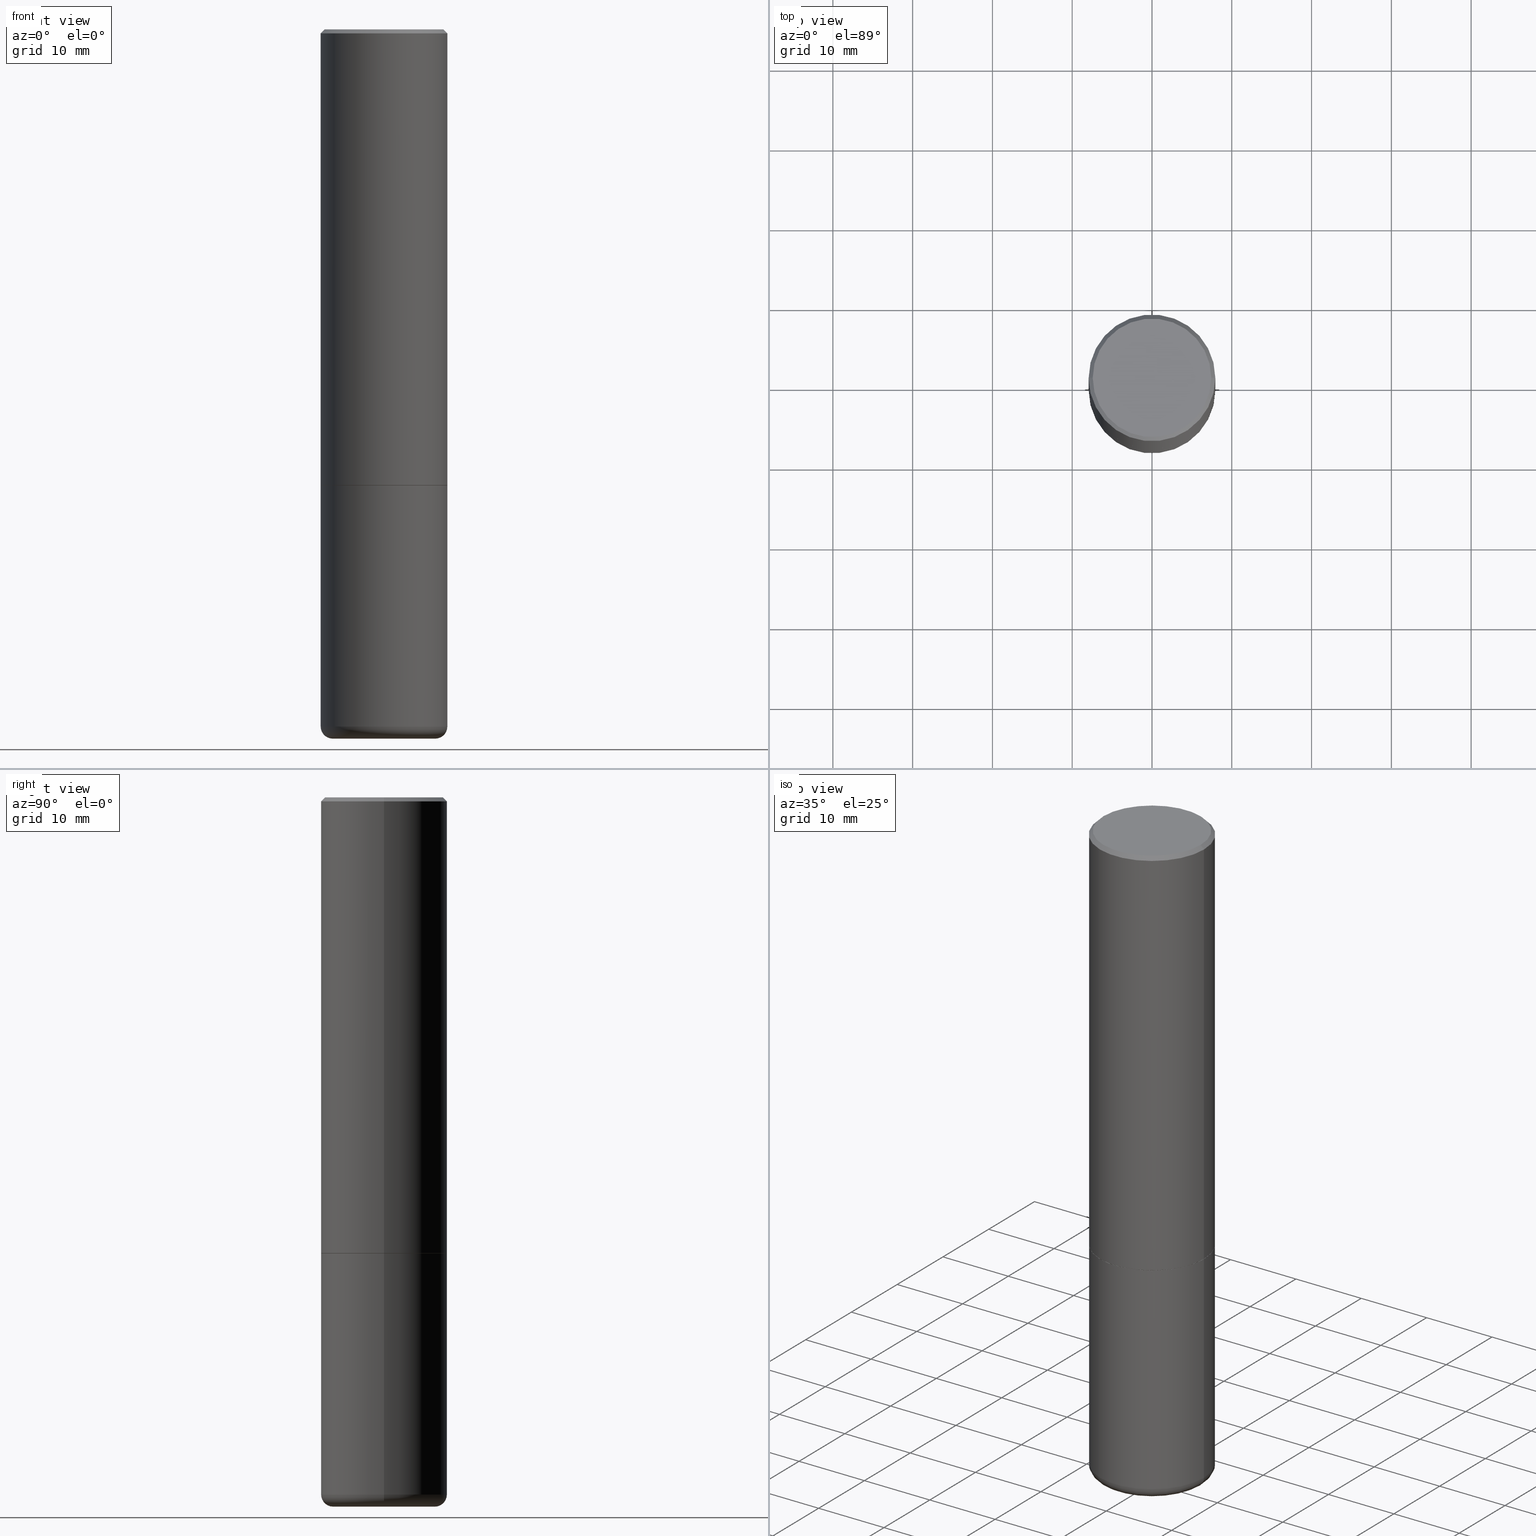
[diagram: canonical four-view strip — front | top / right | iso, engineering-drawing reading convention]
A machine part, canonical four-view strip (front | top / right | iso — engineering-drawing reading convention). The complete STEP part file that produces these views, byte-faithful:
ISO-10303-21;
HEADER;
FILE_DESCRIPTION (( 'STEP AP203' ),
    '1' );
FILE_NAME ('38631.STEP',
    '2024-03-03T09:29:24',
    ( '' ),
    ( '' ),
    'SwSTEP 2.0',
    'SolidWorks 2023',
    '' );
FILE_SCHEMA (( 'CONFIG_CONTROL_DESIGN' ));
ENDSEC;

DATA;
#1 = DIRECTION ( 'NONE',  ( -1.000000000000000000, 6.982962677686265922E-15, -4.876176775795935793E-29 ) ) ;
#2 = EDGE_LOOP ( 'NONE', ( #149, #300, #309, #335 ) ) ;
#3 = PERSON_AND_ORGANIZATION_ROLE ( 'creator' ) ;
#4 = VECTOR ( 'NONE', #322, 39.37007874015748143 ) ;
#5 = EDGE_CURVE ( 'NONE', #384, #326, #220, .T. ) ;
#6 = PLANE ( 'NONE',  #310 ) ;
#7 = DIRECTION ( 'NONE',  ( 1.000000000000000000, -6.982962677686266711E-15, 0.000000000000000000 ) ) ;
#8 = COORDINATED_UNIVERSAL_TIME_OFFSET ( 5, 0, .BEHIND. ) ;
#9 = VECTOR ( 'NONE', #81, 39.37007874015748143 ) ;
#10 = CIRCLE ( 'NONE', #49, 0.2925000000000002043 ) ;
#11 = ORIENTED_EDGE ( 'NONE', *, *, #312, .F. ) ;
#12 = EDGE_CURVE ( 'NONE', #154, #228, #126, .T. ) ;
#13 = CARTESIAN_POINT ( 'NONE',  ( 8.412412693276869938E-29, -1.201069580562042103E-14, -3.439999999999999947 ) ) ;
#14 = PERSON ( 'UNSPECIFIED', 'UNSPECIFIED', 'UNSPECIFIED', ('UNSPECIFIED'), ('UNSPECIFIED'), ('UNSPECIFIED') ) ;
#15 = ADVANCED_FACE ( 'NONE', ( #34 ), #6, .F. ) ;
#16 = CC_DESIGN_DATE_AND_TIME_ASSIGNMENT ( #370, #40, ( #70 ) ) ;
#17 = AXIS2_PLACEMENT_3D ( 'NONE', #385, #110, #328 ) ;
#18 = ORIENTED_EDGE ( 'NONE', *, *, #104, .T. ) ;
#19 = AXIS2_PLACEMENT_3D ( 'NONE', #150, #286, #119 ) ;
#20 = ORIENTED_EDGE ( 'NONE', *, *, #120, .T. ) ;
#21 = DIRECTION ( 'NONE',  ( -2.445468806185136597E-29, 3.491481338843145583E-15, 1.000000000000000000 ) ) ;
#22 = CC_DESIGN_SECURITY_CLASSIFICATION ( #400, ( #182 ) ) ;
#23 = ADVANCED_FACE ( 'NONE', ( #359 ), #399, .T. ) ;
#24 = ORIENTED_EDGE ( 'NONE', *, *, #104, .F. ) ;
#25 = FACE_OUTER_BOUND ( 'NONE', #365, .T. ) ;
#26 = CARTESIAN_POINT ( 'NONE',  ( 5.499859345110371740E-29, -7.852341531058233864E-15, -2.248999999999999666 ) ) ;
#27 = ORIENTED_EDGE ( 'NONE', *, *, #299, .T. ) ;
#28 = DIRECTION ( 'NONE',  ( -2.445468806185136597E-29, 3.491481338843145583E-15, 1.000000000000000000 ) ) ;
#29 = DIRECTION ( 'NONE',  ( -1.000000000000000000, 6.982962677686265922E-15, -4.876176775795935793E-29 ) ) ;
#30 = DIRECTION ( 'NONE',  ( -1.000000000000000000, 6.982962677686265922E-15, -4.876176775795935793E-29 ) ) ;
#31 = DIRECTION ( 'NONE',  ( 1.000000000000000000, -6.982962677686266711E-15, 4.876176775795935232E-29 ) ) ;
#32 = CIRCLE ( 'NONE', #241, 0.3125000000000002220 ) ;
#33 = CARTESIAN_POINT ( 'NONE',  ( 0.3125000000000000555, -2.213735251080467306E-15, -0.02000000000000009756 ) ) ;
#34 = FACE_OUTER_BOUND ( 'NONE', #94, .T. ) ;
#35 = ADVANCED_BREP_SHAPE_REPRESENTATION ( '38631', ( #394, #246, #19 ), #344 ) ;
#36 = DIRECTION ( 'NONE',  ( 2.438088387897960049E-29, -3.491481338843145188E-15, -1.000000000000000000 ) ) ;
#37 = VERTEX_POINT ( 'NONE', #345 ) ;
#38 = PLANE ( 'NONE',  #324 ) ;
#39 = ORIENTED_EDGE ( 'NONE', *, *, #240, .T. ) ;
#40 = DATE_TIME_ROLE ( 'creation_date' ) ;
#41 = VERTEX_POINT ( 'NONE', #179 ) ;
#42 = CALENDAR_DATE ( 2024, 3, 3 ) ;
#43 = PERSON_AND_ORGANIZATION ( #14, #311 ) ;
#44 = DIRECTION ( 'NONE',  ( -0.7071067811865453523, 2.468850131082234184E-15, -0.7071067811865496822 ) ) ;
#45 = DIRECTION ( 'NONE',  ( -2.445468806185136597E-29, 3.491481338843145583E-15, 1.000000000000000000 ) ) ;
#46 = EDGE_CURVE ( 'NONE', #384, #217, #158, .T. ) ;
#47 = CARTESIAN_POINT ( 'NONE',  ( -0.3125000000000000555, 2.112346210000095443E-15, -0.02000000000000009756 ) ) ;
#48 = DIRECTION ( 'NONE',  ( -1.000000000000000000, 7.105427357600997914E-15, 0.000000000000000000 ) ) ;
#49 = AXIS2_PLACEMENT_3D ( 'NONE', #155, #28, #121 ) ;
#50 = DIRECTION ( 'NONE',  ( -2.445468806185136597E-29, 3.491481338843145583E-15, 1.000000000000000000 ) ) ;
#51 = CC_DESIGN_PERSON_AND_ORGANIZATION_ASSIGNMENT ( #268, #3, ( #70 ) ) ;
#52 = DIRECTION ( 'NONE',  ( 1.000000000000000000, -6.982962677686266711E-15, 0.000000000000000000 ) ) ;
#53 = ORIENTED_EDGE ( 'NONE', *, *, #140, .F. ) ;
#54 = AXIS2_PLACEMENT_3D ( 'NONE', #234, #291, #109 ) ;
#55 = CARTESIAN_POINT ( 'NONE',  ( 4.890937612370297681E-31, -6.982962677686324889E-17, -0.02000000000000009756 ) ) ;
#56 = CARTESIAN_POINT ( 'NONE',  ( 0.000000000000000000, 0.000000000000000000, 0.000000000000000000 ) ) ;
#57 = ORIENTED_EDGE ( 'NONE', *, *, #146, .T. ) ;
#58 = APPLICATION_PROTOCOL_DEFINITION ( 'international standard', 'config_control_design', 1994, #350 ) ;
#59 = DIRECTION ( 'NONE',  ( 1.000000000000000000, -6.982962677686265922E-15, 0.000000000000000000 ) ) ;
#60 = ORIENTED_EDGE ( 'NONE', *, *, #395, .T. ) ;
#61 = CALENDAR_DATE ( 2024, 3, 3 ) ;
#62 = AXIS2_PLACEMENT_3D ( 'NONE', #80, #249, #189 ) ;
#63 = CIRCLE ( 'NONE', #99, 0.2525000000000000022 ) ;
#64 = DIRECTION ( 'NONE',  ( 1.000000000000000000, -6.982962677686274599E-15, 0.000000000000000000 ) ) ;
#65 = EDGE_CURVE ( 'NONE', #392, #228, #32, .T. ) ;
#66 = EDGE_LOOP ( 'NONE', ( #27, #39, #199, #266 ) ) ;
#67 = PERSON_AND_ORGANIZATION ( #14, #311 ) ;
#68 = FACE_OUTER_BOUND ( 'NONE', #386, .T. ) ;
#69 = ORIENTED_EDGE ( 'NONE', *, *, #312, .T. ) ;
#70 = PRODUCT_DEFINITION ( 'UNKNOWN', '', #182, #197 ) ;
#71 = APPROVAL_ROLE ( '' ) ;
#72 = VERTEX_POINT ( 'NONE', #305 ) ;
#73 = COORDINATED_UNIVERSAL_TIME_OFFSET ( 5, 0, .BEHIND. ) ;
#74 = CIRCLE ( 'NONE', #372, 0.3125000000000000000 ) ;
#75 = AXIS2_PLACEMENT_3D ( 'NONE', #307, #180, #208 ) ;
#76 = CARTESIAN_POINT ( 'NONE',  ( 8.412412693276869938E-29, -1.201069580562042103E-14, -3.439999999999999947 ) ) ;
#77 = LINE ( 'NONE', #375, #284 ) ;
#78 = AXIS2_PLACEMENT_3D ( 'NONE', #366, #200, #330 ) ;
#79 = EDGE_CURVE ( 'NONE', #41, #392, #77, .T. ) ;
#80 = CARTESIAN_POINT ( 'NONE',  ( 0.000000000000000000, 0.000000000000000000, 0.000000000000000000 ) ) ;
#81 = DIRECTION ( 'NONE',  ( -2.445468806185136877E-29, 3.491481338843145188E-15, 1.000000000000000000 ) ) ;
#82 = CARTESIAN_POINT ( 'NONE',  ( -0.3125000000000000000, 2.220446049250313081E-15, -1.537167215704658232E-29 ) ) ;
#83 = ADVANCED_FACE ( 'NONE', ( #143 ), #275, .T. ) ;
#84 = ADVANCED_FACE ( 'NONE', ( #355 ), #98, .T. ) ;
#85 = ORIENTED_EDGE ( 'NONE', *, *, #100, .T. ) ;
#86 = APPLICATION_PROTOCOL_DEFINITION ( 'international standard', 'config_control_design', 1994, #265 ) ;
#87 = DIMENSIONAL_EXPONENTS ( 1.000000000000000000, 0.000000000000000000, 0.000000000000000000, 0.000000000000000000, 0.000000000000000000, 0.000000000000000000, 0.000000000000000000 ) ;
#88 = VECTOR ( 'NONE', #391, 39.37007874015748143 ) ;
#89 = CC_DESIGN_DATE_AND_TIME_ASSIGNMENT ( #136, #163, ( #400 ) ) ;
#90 = PLANE ( 'NONE',  #316 ) ;
#91 = DIRECTION ( 'NONE',  ( 2.438088387897960049E-29, -3.491481338843145188E-15, -1.000000000000000000 ) ) ;
#92 = EDGE_LOOP ( 'NONE', ( #102, #410, #85, #204 ) ) ;
#93 = DIRECTION ( 'NONE',  ( -2.445468806185136597E-29, 3.491481338843145583E-15, 1.000000000000000000 ) ) ;
#94 = EDGE_LOOP ( 'NONE', ( #129, #313 ) ) ;
#95 = FACE_OUTER_BOUND ( 'NONE', #415, .T. ) ;
#96 = ORIENTED_EDGE ( 'NONE', *, *, #146, .F. ) ;
#97 = AXIS2_PLACEMENT_3D ( 'NONE', #193, #239, #401 ) ;
#98 = CONICAL_SURFACE ( 'NONE', #296, 0.3114999999999999991, 0.7853981633975165577 ) ;
#99 = AXIS2_PLACEMENT_3D ( 'NONE', #187, #381, #124 ) ;
#100 = EDGE_CURVE ( 'NONE', #326, #72, #283, .T. ) ;
#101 = CARTESIAN_POINT ( 'NONE',  ( -0.2925000000000002043, 2.077431396611664977E-15, -1.237868622129263269E-16 ) ) ;
#102 = ORIENTED_EDGE ( 'NONE', *, *, #46, .F. ) ;
#103 = ORIENTED_EDGE ( 'NONE', *, *, #244, .F. ) ;
#104 = EDGE_CURVE ( 'NONE', #201, #37, #111, .T. ) ;
#105 = CARTESIAN_POINT ( 'NONE',  ( 5.499859345110371740E-29, -7.852341531058233864E-15, -2.248999999999999666 ) ) ;
#106 = PERSON_AND_ORGANIZATION_ROLE ( 'design_supplier' ) ;
#107 = CIRCLE ( 'NONE', #334, 0.3114999999999999991 ) ;
#108 = LOCAL_TIME ( 4, 29, 24.00000000000000000, #8 ) ;
#109 = DIRECTION ( 'NONE',  ( -1.000000000000000000, 6.982962677686266711E-15, 0.000000000000000000 ) ) ;
#110 = DIRECTION ( 'NONE',  ( -2.445468806185136597E-29, 3.491481338843145583E-15, 1.000000000000000000 ) ) ;
#111 = CIRCLE ( 'NONE', #17, 0.3125000000000000555 ) ;
#112 = CYLINDRICAL_SURFACE ( 'NONE', #382, 0.3125000000000001665 ) ;
#113 = APPROVAL ( #323, 'UNSPECIFIED' ) ;
#114 = CARTESIAN_POINT ( 'NONE',  ( 0.2925000000000002043, -2.110215457714321114E-15, -1.237868622128974102E-16 ) ) ;
#115 = VECTOR ( 'NONE', #44, 39.37007874015748143 ) ;
#116 = CC_DESIGN_APPROVAL ( #362, ( #400 ) ) ;
#117 =( CONVERSION_BASED_UNIT ( 'INCH', #406 ) LENGTH_UNIT ( ) NAMED_UNIT ( #87 ) );
#118 = EDGE_LOOP ( 'NONE', ( #259, #20, #134, #247 ) ) ;
#119 = DIRECTION ( 'NONE',  ( 1.000000000000000000, 0.000000000000000000, 0.000000000000000000 ) ) ;
#120 = EDGE_CURVE ( 'NONE', #217, #72, #74, .T. ) ;
#121 = DIRECTION ( 'NONE',  ( 1.000000000000000000, -6.982962677686266711E-15, 4.878659607425499935E-29 ) ) ;
#122 = CARTESIAN_POINT ( 'NONE',  ( 5.502304813916556222E-29, -7.855833012397076871E-15, -2.249999999999999556 ) ) ;
#123 = AXIS2_PLACEMENT_3D ( 'NONE', #173, #273, #48 ) ;
#124 = DIRECTION ( 'NONE',  ( 1.000000000000000000, -6.982962677686269866E-15, 0.000000000000000000 ) ) ;
#125 = CARTESIAN_POINT ( 'NONE',  ( -0.3125000000000000000, -9.790249756370107944E-15, -3.439999999999999947 ) ) ;
#126 = LINE ( 'NONE', #297, #4 ) ;
#127 = DIRECTION ( 'NONE',  ( 1.000000000000000000, -6.982962677686265922E-15, 0.000000000000000000 ) ) ;
#128 = DIRECTION ( 'NONE',  ( -6.982962677686266711E-15, -1.000000000000000000, 3.491481338843145583E-15 ) ) ;
#129 = ORIENTED_EDGE ( 'NONE', *, *, #140, .T. ) ;
#130 = EDGE_CURVE ( 'NONE', #228, #392, #262, .T. ) ;
#131 = FACE_OUTER_BOUND ( 'NONE', #165, .T. ) ;
#132 = ORIENTED_EDGE ( 'NONE', *, *, #231, .F. ) ;
#133 = CIRCLE ( 'NONE', #176, 0.3125000000000000000 ) ;
#134 = ORIENTED_EDGE ( 'NONE', *, *, #250, .T. ) ;
#135 = CARTESIAN_POINT ( 'NONE',  ( 8.559140821647976968E-29, -1.222018468595100934E-14, -3.500000000000000000 ) ) ;
#136 = DATE_AND_TIME ( #301, #343 ) ;
#137 = APPROVAL_DATE_TIME ( #233, #113 ) ;
#138 = DIRECTION ( 'NONE',  ( -2.445468806185136597E-29, 3.491481338843145583E-15, 1.000000000000000000 ) ) ;
#139 = TOROIDAL_SURFACE ( 'NONE', #144, 0.2525000000000000022, 0.05999999999999995615 ) ;
#140 = EDGE_CURVE ( 'NONE', #221, #232, #403, .T. ) ;
#141 = CARTESIAN_POINT ( 'NONE',  ( 0.000000000000000000, 0.000000000000000000, 0.000000000000000000 ) ) ;
#142 = EDGE_CURVE ( 'NONE', #228, #201, #226, .T. ) ;
#143 = FACE_OUTER_BOUND ( 'NONE', #66, .T. ) ;
#144 = AXIS2_PLACEMENT_3D ( 'NONE', #358, #304, #227 ) ;
#145 = APPROVAL_PERSON_ORGANIZATION ( #67, #362, #202 ) ;
#146 = EDGE_CURVE ( 'NONE', #232, #201, #374, .T. ) ;
#147 = DIRECTION ( 'NONE',  ( -2.438088387897960049E-29, 3.491481338843145188E-15, 1.000000000000000000 ) ) ;
#148 = LOCAL_TIME ( 4, 29, 24.00000000000000000, #360 ) ;
#149 = ORIENTED_EDGE ( 'NONE', *, *, #79, .F. ) ;
#150 = CARTESIAN_POINT ( 'NONE',  ( 0.000000000000000000, 0.000000000000000000, 0.000000000000000000 ) ) ;
#151 = EDGE_CURVE ( 'NONE', #194, #418, #413, .T. ) ;
#152 = ORIENTED_EDGE ( 'NONE', *, *, #12, .F. ) ;
#153 = CARTESIAN_POINT ( 'NONE',  ( 0.3114999999999999991, -1.003102588649634920E-14, -2.249999999999999556 ) ) ;
#154 = VERTEX_POINT ( 'NONE', #153 ) ;
#155 = CARTESIAN_POINT ( 'NONE',  ( 3.027169101572137302E-45, -4.321995194103296744E-31, -1.237868622129119302E-16 ) ) ;
#156 = LINE ( 'NONE', #287, #270 ) ;
#157 = EDGE_LOOP ( 'NONE', ( #96, #53, #183, #69 ) ) ;
#158 = CIRCLE ( 'NONE', #123, 0.05999999999999994227 ) ;
#159 = LOCAL_TIME ( 4, 29, 24.00000000000000000, #269 ) ;
#160 = CARTESIAN_POINT ( 'NONE',  ( -0.3125000000000000000, -7.712818359758435078E-15, -2.249999999999999556 ) ) ;
#161 = CARTESIAN_POINT ( 'NONE',  ( 0.3125000000000000000, -1.003800884917403522E-14, -2.249999999999999556 ) ) ;
#162 = EDGE_LOOP ( 'NONE', ( #369, #319, #171, #389 ) ) ;
#163 = DATE_TIME_ROLE ( 'classification_date' ) ;
#164 = DIRECTION ( 'NONE',  ( 1.000000000000000000, -6.982962677686265922E-15, 0.000000000000000000 ) ) ;
#165 = EDGE_LOOP ( 'NONE', ( #191, #263, #24, #256 ) ) ;
#166 = CARTESIAN_POINT ( 'NONE',  ( 5.502304813916556222E-29, -7.855833012397076871E-15, -2.249999999999999556 ) ) ;
#167 = ORIENTED_EDGE ( 'NONE', *, *, #5, .F. ) ;
#168 = AXIS2_PLACEMENT_3D ( 'NONE', #417, #128, #64 ) ;
#169 = CIRCLE ( 'NONE', #229, 0.3125000000000000555 ) ;
#170 = ADVANCED_FACE ( 'NONE', ( #68 ), #388, .T. ) ;
#171 = ORIENTED_EDGE ( 'NONE', *, *, #299, .F. ) ;
#172 = APPROVAL_DATE_TIME ( #373, #362 ) ;
#173 = CARTESIAN_POINT ( 'NONE',  ( -0.2525000000000000022, -1.021657539782616686E-14, -3.439999999999999947 ) ) ;
#174 = ORIENTED_EDGE ( 'NONE', *, *, #142, .T. ) ;
#175 = FACE_OUTER_BOUND ( 'NONE', #118, .T. ) ;
#176 = AXIS2_PLACEMENT_3D ( 'NONE', #13, #45, #277 ) ;
#177 = CARTESIAN_POINT ( 'NONE',  ( 0.3125000000000000000, -2.182175836776958347E-15, 1.523805242436230075E-29 ) ) ;
#178 = EDGE_CURVE ( 'NONE', #392, #37, #156, .T. ) ;
#179 = CARTESIAN_POINT ( 'NONE',  ( -0.3114999999999999991, -5.637193936156142396E-15, -2.249999999999999556 ) ) ;
#180 = DIRECTION ( 'NONE',  ( -2.445468806185136597E-29, 3.491481338843145583E-15, 1.000000000000000000 ) ) ;
#181 = AXIS2_PLACEMENT_3D ( 'NONE', #26, #93, #190 ) ;
#182 = PRODUCT_DEFINITION_FORMATION_WITH_SPECIFIED_SOURCE ( 'ANY', '', #282, .NOT_KNOWN. ) ;
#183 = ORIENTED_EDGE ( 'NONE', *, *, #244, .T. ) ;
#184 = DIRECTION ( 'NONE',  ( 1.000000000000000000, -6.982962677686269077E-15, 0.000000000000000000 ) ) ;
#185 = ORIENTED_EDGE ( 'NONE', *, *, #65, .T. ) ;
#186 = EDGE_CURVE ( 'NONE', #154, #41, #107, .T. ) ;
#187 = CARTESIAN_POINT ( 'NONE',  ( 8.559140821647976968E-29, -1.222018468595100934E-14, -3.500000000000000000 ) ) ;
#188 = CARTESIAN_POINT ( 'NONE',  ( 0.2525000000000000022, -1.398338276206679106E-14, -3.500000000000000000 ) ) ;
#189 = DIRECTION ( 'NONE',  ( 1.000000000000000000, -6.982962677686266711E-15, 4.876176775795936353E-29 ) ) ;
#190 = DIRECTION ( 'NONE',  ( 1.000000000000000000, -6.982962677686266711E-15, 0.000000000000000000 ) ) ;
#191 = ORIENTED_EDGE ( 'NONE', *, *, #130, .T. ) ;
#192 = PERSON_AND_ORGANIZATION ( #14, #311 ) ;
#193 = CARTESIAN_POINT ( 'NONE',  ( 3.027169101572137302E-45, -4.321995194103296744E-31, -1.237868622129119302E-16 ) ) ;
#194 = VERTEX_POINT ( 'NONE', #161 ) ;
#195 = CONICAL_SURFACE ( 'NONE', #78, 0.3125000000000000555, 0.7853981633974452814 ) ;
#196 = PERSON_AND_ORGANIZATION ( #14, #311 ) ;
#197 = DESIGN_CONTEXT ( 'detailed design', #350, 'design' ) ;
#198 = CARTESIAN_POINT ( 'NONE',  ( 5.502304813916556222E-29, -7.855833012397076871E-15, -2.249999999999999556 ) ) ;
#199 = ORIENTED_EDGE ( 'NONE', *, *, #151, .F. ) ;
#200 = DIRECTION ( 'NONE',  ( 2.445468806185136597E-29, -3.491481338843145583E-15, -1.000000000000000000 ) ) ;
#201 = VERTEX_POINT ( 'NONE', #271 ) ;
#202 = APPROVAL_ROLE ( '' ) ;
#203 = ADVANCED_FACE ( 'NONE', ( #95 ), #38, .F. ) ;
#204 = ORIENTED_EDGE ( 'NONE', *, *, #120, .F. ) ;
#205 = PERSON_AND_ORGANIZATION ( #14, #311 ) ;
#206 = ORIENTED_EDGE ( 'NONE', *, *, #178, .F. ) ;
#207 = DIRECTION ( 'NONE',  ( -2.445468806185136597E-29, 3.491481338843145583E-15, 1.000000000000000000 ) ) ;
#208 = DIRECTION ( 'NONE',  ( 1.000000000000000000, -6.982962677686266711E-15, 4.876176775795936353E-29 ) ) ;
#209 = APPROVAL_PERSON_ORGANIZATION ( #192, #113, #71 ) ;
#210 = ADVANCED_FACE ( 'NONE', ( #292 ), #139, .T. ) ;
#211 = DIRECTION ( 'NONE',  ( -2.445468806185136597E-29, 3.491481338843145583E-15, 1.000000000000000000 ) ) ;
#212 = AXIS2_PLACEMENT_3D ( 'NONE', #56, #261, #414 ) ;
#213 = PRODUCT_DEFINITION_SHAPE ( 'NONE', 'NONE',  #70 ) ;
#214 = DIRECTION ( 'NONE',  ( 1.000000000000000000, -6.982962677686264344E-15, 4.883557194083112340E-29 ) ) ;
#215 = ADVANCED_FACE ( 'NONE', ( #131 ), #222, .T. ) ;
#216 = ORIENTED_EDGE ( 'NONE', *, *, #151, .T. ) ;
#217 = VERTEX_POINT ( 'NONE', #125 ) ;
#218 = MECHANICAL_CONTEXT ( 'NONE', #265, 'mechanical' ) ;
#219 = CLOSED_SHELL ( 'NONE', ( #83, #380, #203, #260, #210, #170 ) ) ;
#220 = CIRCLE ( 'NONE', #276, 0.2525000000000000022 ) ;
#221 = VERTEX_POINT ( 'NONE', #101 ) ;
#222 = CYLINDRICAL_SURFACE ( 'NONE', #212, 0.3125000000000001665 ) ;
#223 = ORIENTED_EDGE ( 'NONE', *, *, #186, .T. ) ;
#224 = PERSON_AND_ORGANIZATION ( #14, #311 ) ;
#225 = ADVANCED_FACE ( 'NONE', ( #230 ), #195, .T. ) ;
#226 = LINE ( 'NONE', #321, #289 ) ;
#227 = DIRECTION ( 'NONE',  ( 1.000000000000000000, -6.982962677686264344E-15, 4.883557194083112340E-29 ) ) ;
#228 = VERTEX_POINT ( 'NONE', #255 ) ;
#229 = AXIS2_PLACEMENT_3D ( 'NONE', #55, #257, #52 ) ;
#230 = FACE_OUTER_BOUND ( 'NONE', #338, .T. ) ;
#231 = EDGE_CURVE ( 'NONE', #41, #154, #379, .T. ) ;
#232 = VERTEX_POINT ( 'NONE', #114 ) ;
#233 = DATE_AND_TIME ( #61, #108 ) ;
#234 = CARTESIAN_POINT ( 'NONE',  ( 4.890937612370297681E-31, -6.982962677686324889E-17, -0.02000000000000009756 ) ) ;
#235 = SECURITY_CLASSIFICATION_LEVEL ( 'unclassified' ) ;
#236 = APPROVAL_STATUS ( 'not_yet_approved' ) ;
#237 = AXIS2_PLACEMENT_3D ( 'NONE', #245, #50, #214 ) ;
#238 = DIRECTION ( 'NONE',  ( -2.445468806185136597E-29, 3.491481338843145583E-15, 1.000000000000000000 ) ) ;
#239 = DIRECTION ( 'NONE',  ( -2.445468806185136597E-29, 3.491481338843145583E-15, 1.000000000000000000 ) ) ;
#240 = EDGE_CURVE ( 'NONE', #217, #418, #243, .T. ) ;
#241 = AXIS2_PLACEMENT_3D ( 'NONE', #105, #238, #7 ) ;
#242 = APPROVAL ( #298, 'UNSPECIFIED' ) ;
#243 = LINE ( 'NONE', #82, #9 ) ;
#244 = EDGE_CURVE ( 'NONE', #221, #37, #339, .T. ) ;
#245 = CARTESIAN_POINT ( 'NONE',  ( 8.412412693276869938E-29, -1.201069580562042103E-14, -3.439999999999999947 ) ) ;
#246 = MANIFOLD_SOLID_BREP ( 'Body-Move/Copy2[2]', #353 ) ;
#247 = ORIENTED_EDGE ( 'NONE', *, *, #395, .F. ) ;
#248 =( NAMED_UNIT ( * ) SI_UNIT ( $, .STERADIAN. ) SOLID_ANGLE_UNIT ( ) );
#249 = DIRECTION ( 'NONE',  ( -2.445468806185136597E-29, 3.491481338843145583E-15, 1.000000000000000000 ) ) ;
#250 = EDGE_CURVE ( 'NONE', #72, #194, #402, .T. ) ;
#251 =( NAMED_UNIT ( * ) PLANE_ANGLE_UNIT ( ) SI_UNIT ( $, .RADIAN. ) );
#252 = DIRECTION ( 'NONE',  ( -2.445468806185136877E-29, 3.491481338843145188E-15, 1.000000000000000000 ) ) ;
#253 = APPROVAL_PERSON_ORGANIZATION ( #196, #242, #393 ) ;
#254 = ORIENTED_EDGE ( 'NONE', *, *, #333, .F. ) ;
#255 = CARTESIAN_POINT ( 'NONE',  ( 0.3125000000000002220, -1.003451736783519379E-14, -2.248999999999999666 ) ) ;
#256 = ORIENTED_EDGE ( 'NONE', *, *, #142, .F. ) ;
#257 = DIRECTION ( 'NONE',  ( -2.445468806185136597E-29, 3.491481338843145583E-15, 1.000000000000000000 ) ) ;
#258 = DIRECTION ( 'NONE',  ( 1.000000000000000000, -6.982962677686269077E-15, 0.000000000000000000 ) ) ;
#259 = ORIENTED_EDGE ( 'NONE', *, *, #240, .F. ) ;
#260 = ADVANCED_FACE ( 'NONE', ( #175 ), #346, .T. ) ;
#261 = DIRECTION ( 'NONE',  ( -2.445468806185136597E-29, 3.491481338843145583E-15, 1.000000000000000000 ) ) ;
#262 = CIRCLE ( 'NONE', #181, 0.3125000000000002220 ) ;
#263 = ORIENTED_EDGE ( 'NONE', *, *, #178, .T. ) ;
#264 = LOCAL_TIME ( 4, 29, 24.00000000000000000, #337 ) ;
#265 = APPLICATION_CONTEXT ( 'configuration controlled 3d designs of mechanical parts and assemblies' ) ;
#266 = ORIENTED_EDGE ( 'NONE', *, *, #250, .F. ) ;
#267 = CALENDAR_DATE ( 2024, 3, 3 ) ;
#268 = PERSON_AND_ORGANIZATION ( #14, #311 ) ;
#269 = COORDINATED_UNIVERSAL_TIME_OFFSET ( 5, 0, .BEHIND. ) ;
#270 = VECTOR ( 'NONE', #252, 39.37007874015748143 ) ;
#271 = CARTESIAN_POINT ( 'NONE',  ( 0.3125000000000000555, -2.213735251080467306E-15, -0.02000000000000009756 ) ) ;
#272 = DIRECTION ( 'NONE',  ( -2.445468806185136597E-29, 3.491481338843145583E-15, 1.000000000000000000 ) ) ;
#273 = DIRECTION ( 'NONE',  ( 7.105427357601001859E-15, 1.000000000000000000, -3.491481338843145583E-15 ) ) ;
#274 = CC_DESIGN_PERSON_AND_ORGANIZATION_ASSIGNMENT ( #368, #327, ( #182 ) ) ;
#275 = CYLINDRICAL_SURFACE ( 'NONE', #62, 0.3125000000000000000 ) ;
#276 = AXIS2_PLACEMENT_3D ( 'NONE', #135, #367, #331 ) ;
#277 = DIRECTION ( 'NONE',  ( 1.000000000000000000, -6.982962677686269077E-15, 0.000000000000000000 ) ) ;
#278 = CC_DESIGN_APPROVAL ( #242, ( #182 ) ) ;
#279 = DIRECTION ( 'NONE',  ( -2.445468806185136877E-29, 3.491481338843145188E-15, 1.000000000000000000 ) ) ;
#280 = CARTESIAN_POINT ( 'NONE',  ( 5.502304813916556222E-29, -7.855833012397076871E-15, -2.249999999999999556 ) ) ;
#281 = UNCERTAINTY_MEASURE_WITH_UNIT (LENGTH_MEASURE( 1.000000000000000082E-05 ), #117, 'distance_accuracy_value', 'NONE');
#282 = PRODUCT ( '38631', '38631', '', ( #218 ) ) ;
#283 = CIRCLE ( 'NONE', #168, 0.05999999999999994227 ) ;
#284 = VECTOR ( 'NONE', #340, 39.37007874015748143 ) ;
#285 = CONICAL_SURFACE ( 'NONE', #336, 0.3114999999999999991, 0.7853981633975165577 ) ;
#286 = DIRECTION ( 'NONE',  ( 0.000000000000000000, 0.000000000000000000, 1.000000000000000000 ) ) ;
#287 = CARTESIAN_POINT ( 'NONE',  ( -0.3125000000000001665, 2.220446049250314264E-15, -1.537167215704658792E-29 ) ) ;
#288 = DIRECTION ( 'NONE',  ( -2.445468806185136597E-29, 3.491481338843145583E-15, 1.000000000000000000 ) ) ;
#289 = VECTOR ( 'NONE', #294, 39.37007874015748143 ) ;
#290 = DIRECTION ( 'NONE',  ( -2.445468806185136597E-29, 3.491481338843145583E-15, 1.000000000000000000 ) ) ;
#291 = DIRECTION ( 'NONE',  ( 2.445468806185136597E-29, -3.491481338843145583E-15, -1.000000000000000000 ) ) ;
#292 = FACE_OUTER_BOUND ( 'NONE', #92, .T. ) ;
#293 = CARTESIAN_POINT ( 'NONE',  ( 2.042516583223234512E-15, 0.2925000000000002043, -1.083151722718076795E-15 ) ) ;
#294 = DIRECTION ( 'NONE',  ( -2.445468806185136877E-29, 3.491481338843145188E-15, 1.000000000000000000 ) ) ;
#295 = ORIENTED_EDGE ( 'NONE', *, *, #79, .T. ) ;
#296 = AXIS2_PLACEMENT_3D ( 'NONE', #198, #207, #59 ) ;
#297 = CARTESIAN_POINT ( 'NONE',  ( 0.3114999999999999991, -1.003102588649634920E-14, -2.249999999999999556 ) ) ;
#298 = APPROVAL_STATUS ( 'not_yet_approved' ) ;
#299 = EDGE_CURVE ( 'NONE', #72, #217, #133, .T. ) ;
#300 = ORIENTED_EDGE ( 'NONE', *, *, #231, .T. ) ;
#301 = CALENDAR_DATE ( 2024, 3, 3 ) ;
#302 = CC_DESIGN_PERSON_AND_ORGANIZATION_ASSIGNMENT ( #43, #106, ( #182 ) ) ;
#303 = SHAPE_DEFINITION_REPRESENTATION ( #213, #35 ) ;
#304 = DIRECTION ( 'NONE',  ( -2.445468806185136597E-29, 3.491481338843145583E-15, 1.000000000000000000 ) ) ;
#305 = CARTESIAN_POINT ( 'NONE',  ( 0.3125000000000000000, -1.419287164239737937E-14, -3.439999999999999947 ) ) ;
#306 = AXIS2_PLACEMENT_3D ( 'NONE', #363, #36, #29 ) ;
#307 = CARTESIAN_POINT ( 'NONE',  ( 0.000000000000000000, 0.000000000000000000, 0.000000000000000000 ) ) ;
#308 = ADVANCED_FACE ( 'NONE', ( #404 ), #112, .T. ) ;
#309 = ORIENTED_EDGE ( 'NONE', *, *, #12, .T. ) ;
#310 = AXIS2_PLACEMENT_3D ( 'NONE', #293, #396, #30 ) ;
#311 = ORGANIZATION ( 'UNSPECIFIED', 'UNSPECIFIED', '' ) ;
#312 = EDGE_CURVE ( 'NONE', #37, #201, #169, .T. ) ;
#313 = ORIENTED_EDGE ( 'NONE', *, *, #333, .T. ) ;
#314 = DIRECTION ( 'NONE',  ( 1.000000000000000000, -6.982962677686265922E-15, 4.876176775795935793E-29 ) ) ;
#315 = AXIS2_PLACEMENT_3D ( 'NONE', #280, #211, #405 ) ;
#316 = AXIS2_PLACEMENT_3D ( 'NONE', #416, #147, #314 ) ;
#317 = FACE_OUTER_BOUND ( 'NONE', #356, .T. ) ;
#318 = CC_DESIGN_PERSON_AND_ORGANIZATION_ASSIGNMENT ( #205, #390, ( #400 ) ) ;
#319 = ORIENTED_EDGE ( 'NONE', *, *, #46, .T. ) ;
#320 = CARTESIAN_POINT ( 'NONE',  ( 5.502304813916556222E-29, -7.855833012397076871E-15, -2.249999999999999556 ) ) ;
#321 = CARTESIAN_POINT ( 'NONE',  ( 0.3125000000000001665, -2.182175836776959530E-15, 1.523805242436230636E-29 ) ) ;
#322 = DIRECTION ( 'NONE',  ( 0.7071067811865957564, -2.468850131082761932E-15, 0.7071067811864992780 ) ) ;
#323 = APPROVAL_STATUS ( 'not_yet_approved' ) ;
#324 = AXIS2_PLACEMENT_3D ( 'NONE', #166, #91, #1 ) ;
#325 = DIRECTION ( 'NONE',  ( 1.000000000000000000, -6.982962677686269077E-15, 0.000000000000000000 ) ) ;
#326 = VERTEX_POINT ( 'NONE', #188 ) ;
#327 = PERSON_AND_ORGANIZATION_ROLE ( 'creator' ) ;
#328 = DIRECTION ( 'NONE',  ( 1.000000000000000000, -6.982962677686266711E-15, 0.000000000000000000 ) ) ;
#329 = ORIENTED_EDGE ( 'NONE', *, *, #409, .F. ) ;
#330 = DIRECTION ( 'NONE',  ( -1.000000000000000000, 6.982962677686266711E-15, 0.000000000000000000 ) ) ;
#331 = DIRECTION ( 'NONE',  ( 1.000000000000000000, -6.982962677686269866E-15, 0.000000000000000000 ) ) ;
#332 = CALENDAR_DATE ( 2024, 3, 3 ) ;
#333 = EDGE_CURVE ( 'NONE', #232, #221, #10, .T. ) ;
#334 = AXIS2_PLACEMENT_3D ( 'NONE', #383, #138, #164 ) ;
#335 = ORIENTED_EDGE ( 'NONE', *, *, #65, .F. ) ;
#336 = AXIS2_PLACEMENT_3D ( 'NONE', #320, #288, #127 ) ;
#337 = COORDINATED_UNIVERSAL_TIME_OFFSET ( 5, 0, .BEHIND. ) ;
#338 = EDGE_LOOP ( 'NONE', ( #254, #57, #18, #103 ) ) ;
#339 = LINE ( 'NONE', #47, #115 ) ;
#340 = DIRECTION ( 'NONE',  ( -0.7071067811865957564, 7.493145998870527710E-15, 0.7071067811864992780 ) ) ;
#341 = AXIS2_PLACEMENT_3D ( 'NONE', #122, #411, #258 ) ;
#342 = ADVANCED_FACE ( 'NONE', ( #25 ), #90, .F. ) ;
#343 = LOCAL_TIME ( 4, 29, 24.00000000000000000, #73 ) ;
#344 =( GEOMETRIC_REPRESENTATION_CONTEXT ( 3 ) GLOBAL_UNCERTAINTY_ASSIGNED_CONTEXT ( ( #281 ) ) GLOBAL_UNIT_ASSIGNED_CONTEXT ( ( #117, #251, #248 ) ) REPRESENTATION_CONTEXT ( 'NONE', 'WORKASPACE' ) );
#345 = CARTESIAN_POINT ( 'NONE',  ( -0.3125000000000000555, 2.112346210000095443E-15, -0.02000000000000009756 ) ) ;
#346 = CYLINDRICAL_SURFACE ( 'NONE', #75, 0.3125000000000000000 ) ;
#347 = CC_DESIGN_APPROVAL ( #113, ( #70 ) ) ;
#348 =( LENGTH_UNIT ( ) NAMED_UNIT ( * ) SI_UNIT ( $, .METRE. ) );
#349 = EDGE_LOOP ( 'NONE', ( #206, #185, #174, #11 ) ) ;
#350 = APPLICATION_CONTEXT ( 'configuration controlled 3d designs of mechanical parts and assemblies' ) ;
#351 = CC_DESIGN_PERSON_AND_ORGANIZATION_ASSIGNMENT ( #224, #357, ( #282 ) ) ;
#352 = CARTESIAN_POINT ( 'NONE',  ( 5.502304813916556222E-29, -7.855833012397076871E-15, -2.249999999999999556 ) ) ;
#353 = CLOSED_SHELL ( 'NONE', ( #377, #215, #225, #23, #308, #84, #342, #15 ) ) ;
#354 = CARTESIAN_POINT ( 'NONE',  ( -0.2525000000000000022, -1.010815701726343156E-14, -3.500000000000000000 ) ) ;
#355 = FACE_OUTER_BOUND ( 'NONE', #2, .T. ) ;
#356 = EDGE_LOOP ( 'NONE', ( #223, #295, #378, #152 ) ) ;
#357 = PERSON_AND_ORGANIZATION_ROLE ( 'design_owner' ) ;
#358 = CARTESIAN_POINT ( 'NONE',  ( 8.412412693276869938E-29, -1.201069580562042103E-14, -3.439999999999999947 ) ) ;
#359 = FACE_OUTER_BOUND ( 'NONE', #157, .T. ) ;
#360 = COORDINATED_UNIVERSAL_TIME_OFFSET ( 5, 0, .BEHIND. ) ;
#361 = VECTOR ( 'NONE', #279, 39.37007874015748143 ) ;
#362 = APPROVAL ( #236, 'UNSPECIFIED' ) ;
#363 = CARTESIAN_POINT ( 'NONE',  ( 8.559140821647976968E-29, -1.222018468595100934E-14, -3.500000000000000000 ) ) ;
#364 = TOROIDAL_SURFACE ( 'NONE', #237, 0.2525000000000000022, 0.05999999999999995615 ) ;
#365 = EDGE_LOOP ( 'NONE', ( #408, #132 ) ) ;
#366 = CARTESIAN_POINT ( 'NONE',  ( 4.890937612370297681E-31, -6.982962677686324889E-17, -0.02000000000000009756 ) ) ;
#367 = DIRECTION ( 'NONE',  ( -2.445468806185136597E-29, 3.491481338843145583E-15, 1.000000000000000000 ) ) ;
#368 = PERSON_AND_ORGANIZATION ( #14, #311 ) ;
#369 = ORIENTED_EDGE ( 'NONE', *, *, #409, .T. ) ;
#370 = DATE_AND_TIME ( #267, #264 ) ;
#371 = PRODUCT_RELATED_PRODUCT_CATEGORY ( 'detail', '', ( #282 ) ) ;
#372 = AXIS2_PLACEMENT_3D ( 'NONE', #76, #290, #325 ) ;
#373 = DATE_AND_TIME ( #332, #148 ) ;
#374 = LINE ( 'NONE', #33, #88 ) ;
#375 = CARTESIAN_POINT ( 'NONE',  ( -0.3114999999999999991, -5.642492390504364798E-15, -2.249999999999999556 ) ) ;
#376 = CIRCLE ( 'NONE', #407, 0.3125000000000000000 ) ;
#377 = ADVANCED_FACE ( 'NONE', ( #317 ), #285, .T. ) ;
#378 = ORIENTED_EDGE ( 'NONE', *, *, #130, .F. ) ;
#379 = CIRCLE ( 'NONE', #315, 0.3114999999999999991 ) ;
#380 = ADVANCED_FACE ( 'NONE', ( #387 ), #364, .T. ) ;
#381 = DIRECTION ( 'NONE',  ( -2.445468806185136597E-29, 3.491481338843145583E-15, 1.000000000000000000 ) ) ;
#382 = AXIS2_PLACEMENT_3D ( 'NONE', #141, #272, #31 ) ;
#383 = CARTESIAN_POINT ( 'NONE',  ( 5.502304813916556222E-29, -7.855833012397076871E-15, -2.249999999999999556 ) ) ;
#384 = VERTEX_POINT ( 'NONE', #354 ) ;
#385 = CARTESIAN_POINT ( 'NONE',  ( 4.890937612370297681E-31, -6.982962677686324889E-17, -0.02000000000000009756 ) ) ;
#386 = EDGE_LOOP ( 'NONE', ( #329, #167 ) ) ;
#387 = FACE_OUTER_BOUND ( 'NONE', #162, .T. ) ;
#388 = PLANE ( 'NONE',  #306 ) ;
#389 = ORIENTED_EDGE ( 'NONE', *, *, #100, .F. ) ;
#390 = PERSON_AND_ORGANIZATION_ROLE ( 'classification_officer' ) ;
#391 = DIRECTION ( 'NONE',  ( 0.7071067811865453523, -7.319954787623248157E-15, -0.7071067811865496822 ) ) ;
#392 = VERTEX_POINT ( 'NONE', #412 ) ;
#393 = APPROVAL_ROLE ( '' ) ;
#394 = MANIFOLD_SOLID_BREP ( 'Body-Move/Copy2[1]', #219 ) ;
#395 = EDGE_CURVE ( 'NONE', #418, #194, #376, .T. ) ;
#396 = DIRECTION ( 'NONE',  ( 2.438088387897960049E-29, -3.491481338843145188E-15, -1.000000000000000000 ) ) ;
#397 = DATE_AND_TIME ( #42, #159 ) ;
#398 = APPROVAL_DATE_TIME ( #397, #242 ) ;
#399 = CONICAL_SURFACE ( 'NONE', #54, 0.3125000000000000555, 0.7853981633974452814 ) ;
#400 = SECURITY_CLASSIFICATION ( '', '', #235 ) ;
#401 = DIRECTION ( 'NONE',  ( 1.000000000000000000, -6.982962677686266711E-15, 4.878659607425499935E-29 ) ) ;
#402 = LINE ( 'NONE', #177, #361 ) ;
#403 = CIRCLE ( 'NONE', #97, 0.2925000000000002043 ) ;
#404 = FACE_OUTER_BOUND ( 'NONE', #349, .T. ) ;
#405 = DIRECTION ( 'NONE',  ( 1.000000000000000000, -6.982962677686265922E-15, 0.000000000000000000 ) ) ;
#406 = LENGTH_MEASURE_WITH_UNIT ( LENGTH_MEASURE( 0.02539999999999999897 ), #348 );
#407 = AXIS2_PLACEMENT_3D ( 'NONE', #352, #21, #184 ) ;
#408 = ORIENTED_EDGE ( 'NONE', *, *, #186, .F. ) ;
#409 = EDGE_CURVE ( 'NONE', #326, #384, #63, .T. ) ;
#410 = ORIENTED_EDGE ( 'NONE', *, *, #5, .T. ) ;
#411 = DIRECTION ( 'NONE',  ( -2.445468806185136597E-29, 3.491481338843145583E-15, 1.000000000000000000 ) ) ;
#412 = CARTESIAN_POINT ( 'NONE',  ( -0.3125000000000002220, -1.740639529667233725E-15, -2.248999999999999666 ) ) ;
#413 = CIRCLE ( 'NONE', #341, 0.3125000000000000000 ) ;
#414 = DIRECTION ( 'NONE',  ( 1.000000000000000000, -6.982962677686266711E-15, 4.876176775795935232E-29 ) ) ;
#415 = EDGE_LOOP ( 'NONE', ( #216, #60 ) ) ;
#416 = CARTESIAN_POINT ( 'NONE',  ( 5.502304813916556222E-29, -7.855833012397076871E-15, -2.249999999999999556 ) ) ;
#417 = CARTESIAN_POINT ( 'NONE',  ( 0.2525000000000000022, -1.377389388173620432E-14, -3.439999999999999947 ) ) ;
#418 = VERTEX_POINT ( 'NONE', #160 ) ;
ENDSEC;
END-ISO-10303-21;
